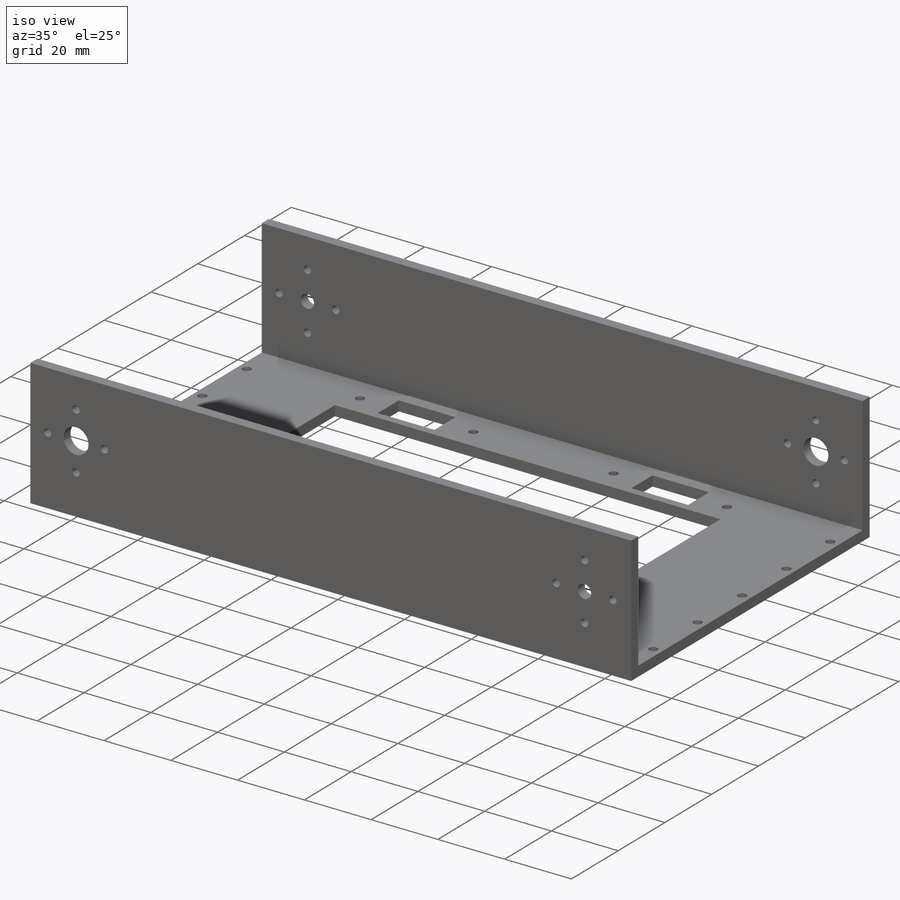
[diagram: iso view]
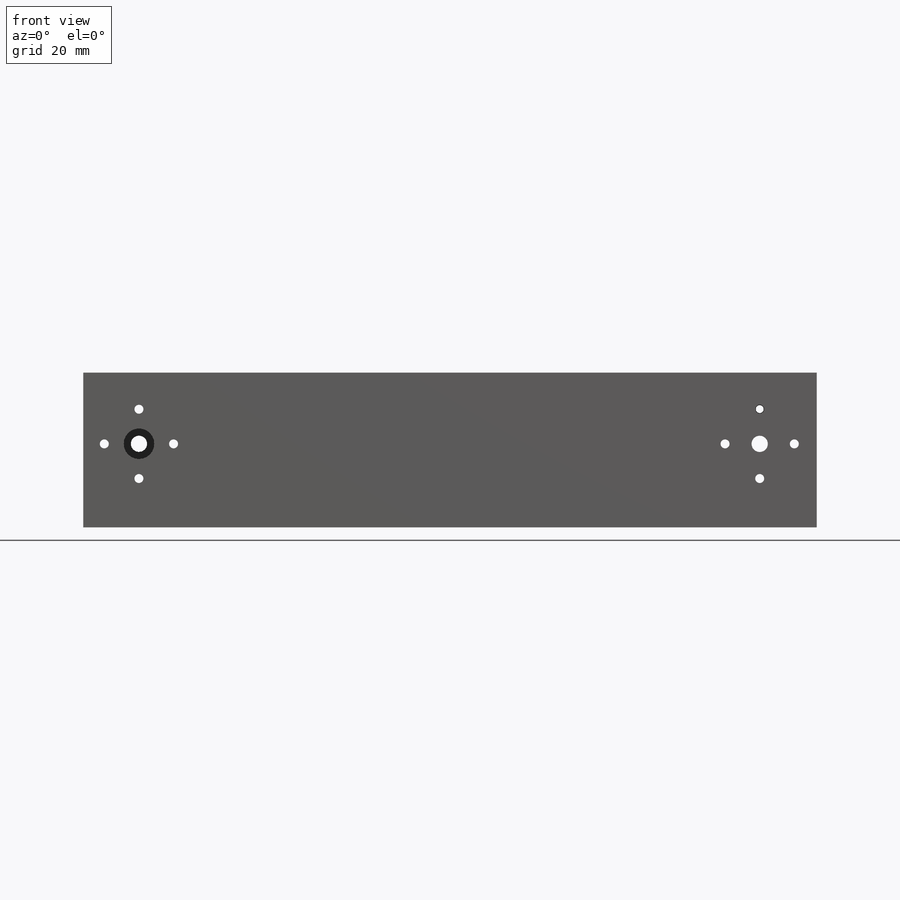
[diagram: front view]
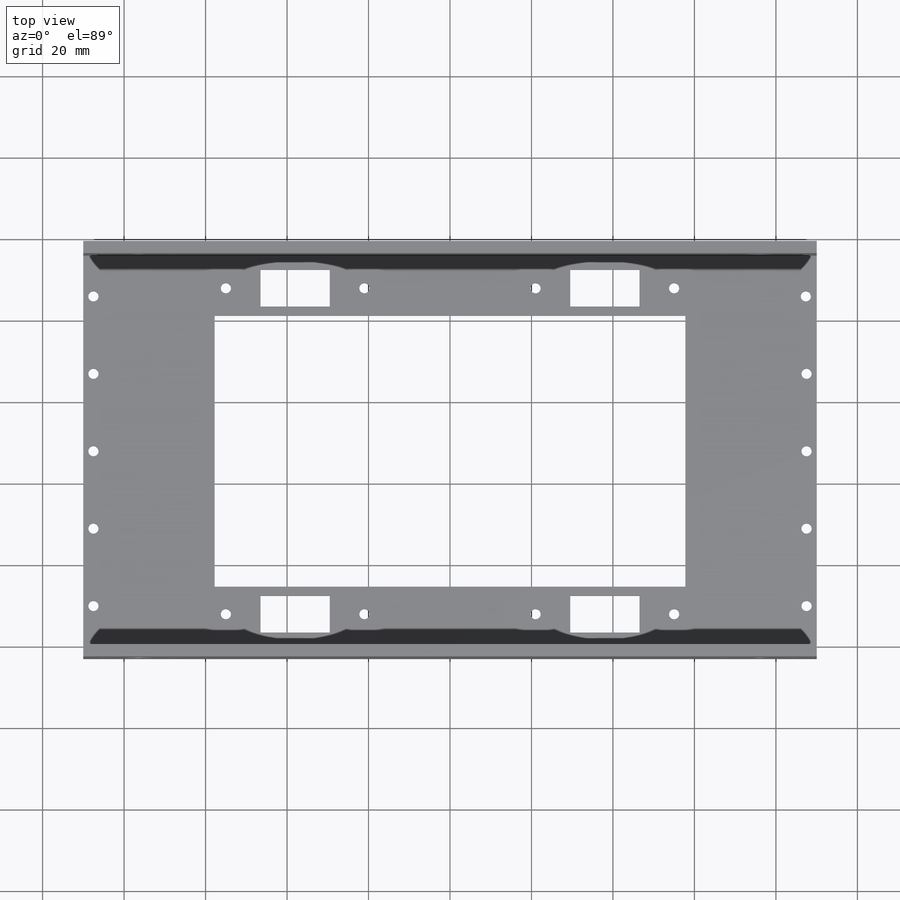
[diagram: top view]
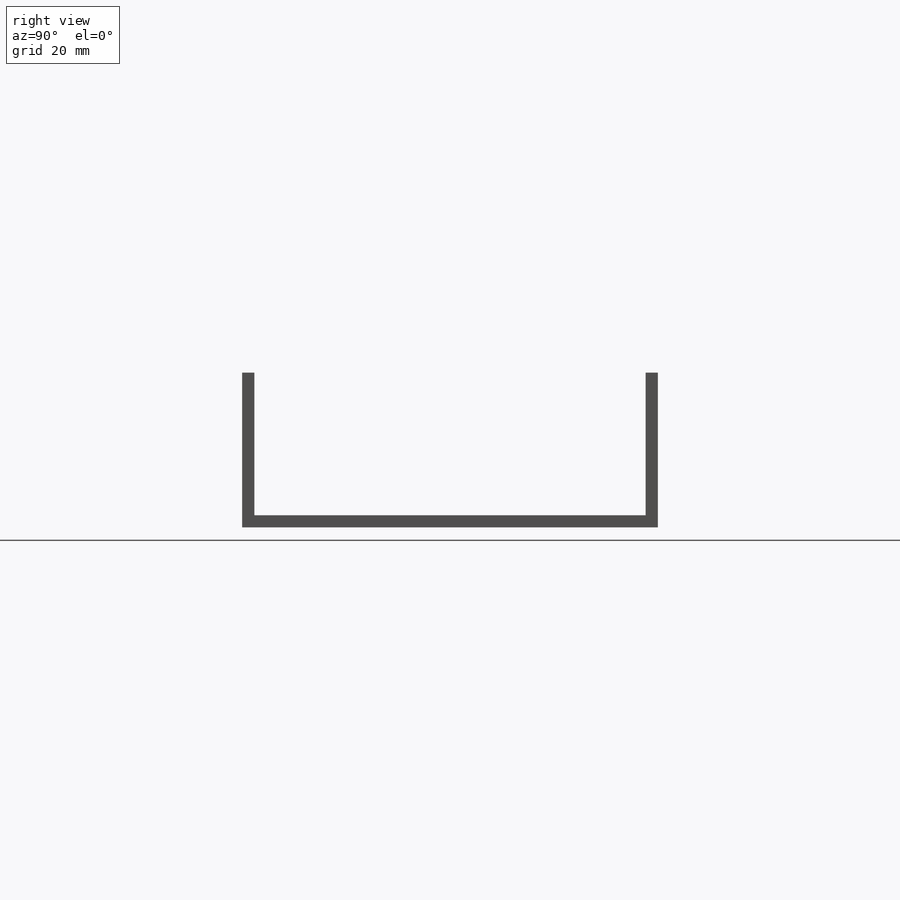
[diagram: right view]
SOLIDWORKS PART (.sldprt)
format: sldprt  version: not decoded by parser v0  size: 471,552 bytes
history: native  units: mm
features: sketch x10, cut_extrude x7, extrude x3, material x1 (+12 scaffold rows collapsed)
feature tree (33):
  scaffold x12  (default folders/planes/origin — collapsed)
  material  "재질 <지정안함>"
  sketch  "스케치1"  dims[D1=17.5mm D2=35.0mm D3=90.0mm D4=180.0mm]
  extrude  "보스-돌출1"  Depth=3mm
  sketch  "스케치2"  dims[D3=7.5mm D4=4.0mm D1=76.0mm D2=76.0mm]
  cut_extrude  "컷-돌출1"  Depth=3mm
  sketch  "스케치3"  dims[D1=~1.153305mm]
  cut_extrude  "컷-돌출2"  Depth=3mm
  sketch  "스케치4"  dims[D1=3.0mm D2=96.0mm]
  extrude  "보스-돌출2"  Depth=3mm
  sketch  "스케치5"  dims[D1=3.0mm D2=180.0mm]
  extrude  "보스-돌출3"  Depth=35mm
  sketch  "스케치6"  dims[D1=4.0mm]
  cut_extrude  "컷-돌출3"  Depth=35mm
  sketch  "스케치9"  dims[D1=48.0mm D2=66.5mm D3=115.5mm D4=57.75mm D5=33.25mm]
  cut_extrude  "컷-돌출4"  Depth=10mm
  sketch  "스케치10"  dims[D7=~0.614981mm D1=90.0mm D2=48.0mm D3=55.0mm D4=55.0mm D5=40.0mm D6=40.0mm]
  cut_extrude  "컷-돌출5"  Depth=10mm
  sketch  "스케치11"  dims[c1.D5=~1.151517mm c1.D1=17.0mm c1.D2=17.0mm c1.D3=17.0mm c1.D4=17.0mm c2.D5=17.0mm c2.D6=9.0mm c2.D7=9.0mm c2.D8=17.0mm c2.D9=17.0mm c2.D10=9.0mm c2.D11=17.0mm c2.D12=9.0mm c2.D13=8.5mm c2.D14=4.5mm c2.D15=4.5mm c2.D16=8.5mm c2.D17=4.5mm c2.D18=8.5mm c2.D19=8.5mm c2.D20=4.5mm]
  cut_extrude  "컷-돌출6"  Depth=10mm
  sketch  "스케치12"  dims[D8=~1.458031mm D1=48.0mm D2=38.0mm D3=38.0mm D4=19.0mm D5=19.0mm D6=2.5mm D7=2.5mm]
  cut_extrude  "컷-돌출7"  Depth=10mm
decode coverage: 20 of 20 modeling features carry decoded parameters
note: ~ marks probable driven/reference dimensions
note: suppression state not decoded; provenance and decode notes live in map.json
